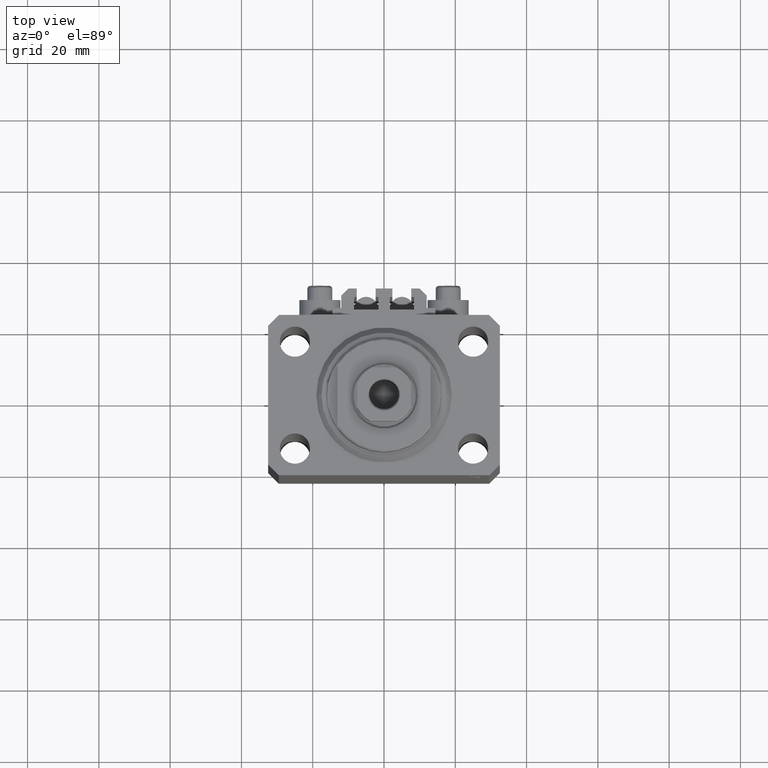
[diagram: clean part render]
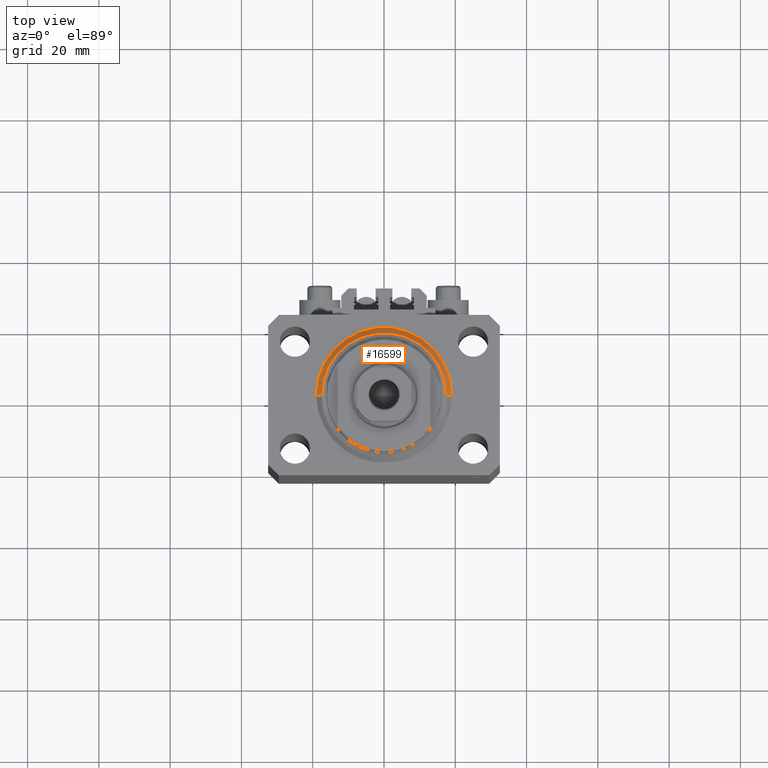
[diagram: same view with one face highlighted and labeled with its STEP entity id]
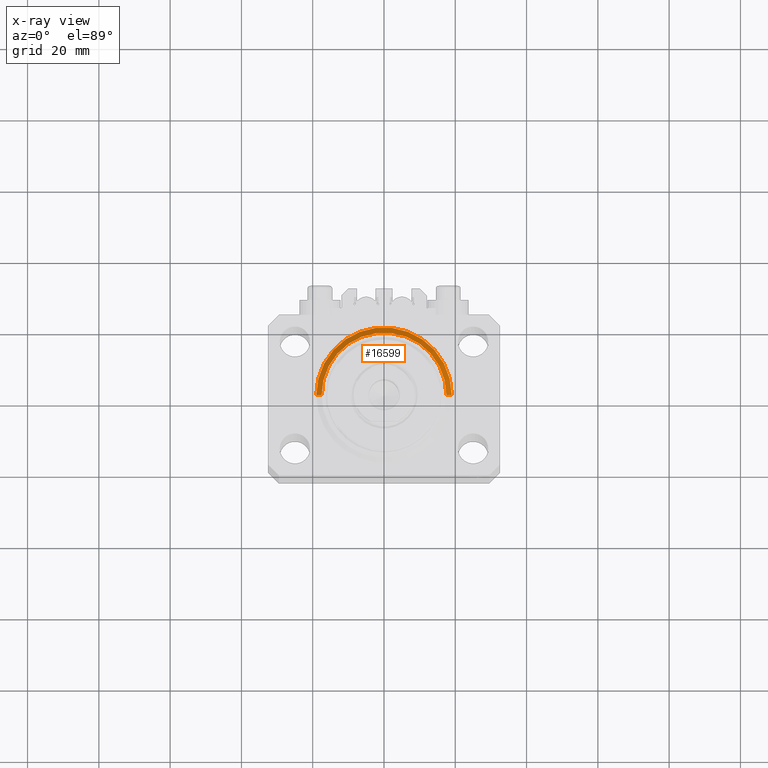
[diagram: x-ray of the same camera — body ghosted, the highlighted face saturated]
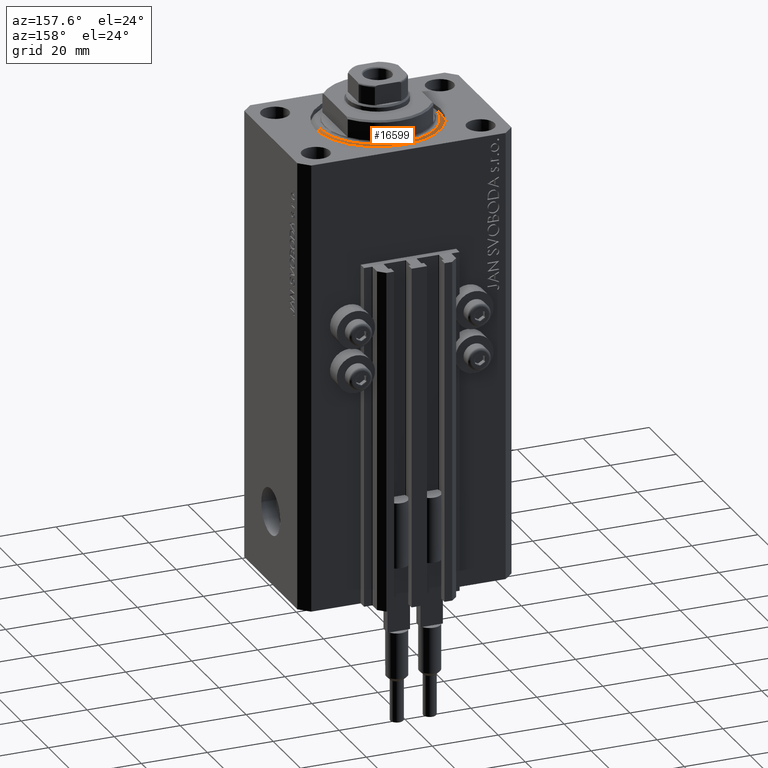
[diagram: same view with one face highlighted and labeled with its STEP entity id]
A machine part, top view. The second image highlights one B-rep face of the part: STEP entity #16599.
The next image is the same camera in x-ray: the body ghosted, the highlighted face saturated — about 0% of this face is hidden behind the body in this view.
A second angle (auxiliary view) of the same face is appended — the face is thin or edge-on in the first view.
In plain terms, the highlighted conical surface has half-angle 45 deg.
Its self-contained STEP definition (entity closure, byte-faithful):
#907 = CARTESIAN_POINT ( 'NONE',  ( 0.000000000000000000, 0.000000000000000000, 1.500000000000004885 ) ) ;
#1281 = AXIS2_PLACEMENT_3D ( 'NONE', #42294, #46432, #8942 ) ;
#1509 = DIRECTION ( 'NONE',  ( -0.7071067811865483499, 8.659560562354943952E-17, 0.7071067811865467956 ) ) ;
#3047 = ORIENTED_EDGE ( 'NONE', *, *, #12336, .F. ) ;
#3214 = FACE_OUTER_BOUND ( 'NONE', #42265, .T. ) ;
#3962 = VECTOR ( 'NONE', #45129, 1000.000000000000000 ) ;
#6084 = CARTESIAN_POINT ( 'NONE',  ( 19.00000000000000000, 2.326828918379970970E-15, 1.500000000000004885 ) ) ;
#6701 = CIRCLE ( 'NONE', #1281, 17.49999999999999289 ) ;
#7655 = EDGE_CURVE ( 'NONE', #30315, #27007, #16115, .T. ) ;
#7818 = CARTESIAN_POINT ( 'NONE',  ( -19.00000000000000000, 0.000000000000000000, 1.500000000000004885 ) ) ;
#8550 = CARTESIAN_POINT ( 'NONE',  ( -19.00000000000000000, 2.326828918379970970E-15, 1.500000000000004885 ) ) ;
#8821 = CIRCLE ( 'NONE', #36038, 19.00000000000000000 ) ;
#8942 = DIRECTION ( 'NONE',  ( 1.000000000000000000, 0.000000000000000000, 0.000000000000000000 ) ) ;
#9669 = CONICAL_SURFACE ( 'NONE', #46250, 19.00000000000000000, 0.7853981633974492782 ) ;
#9884 = CARTESIAN_POINT ( 'NONE',  ( 17.49999999999999289, 0.000000000000000000, 0.000000000000000000 ) ) ;
#12336 = EDGE_CURVE ( 'NONE', #28673, #44255, #34410, .T. ) ;
#16115 = LINE ( 'NONE', #8550, #42831 ) ;
#16599 = ADVANCED_FACE ( 'NONE', ( #3214 ), #9669, .T. ) ;
#18514 = CARTESIAN_POINT ( 'NONE',  ( 0.000000000000000000, 0.000000000000000000, 1.500000000000004885 ) ) ;
#20616 = EDGE_CURVE ( 'NONE', #44255, #27007, #8821, .T. ) ;
#22074 = DIRECTION ( 'NONE',  ( 1.000000000000000000, 0.000000000000000000, 0.000000000000000000 ) ) ;
#27007 = VERTEX_POINT ( 'NONE', #7818 ) ;
#28673 = VERTEX_POINT ( 'NONE', #9884 ) ;
#30315 = VERTEX_POINT ( 'NONE', #41853 ) ;
#31403 = EDGE_CURVE ( 'NONE', #30315, #28673, #6701, .T. ) ;
#34410 = LINE ( 'NONE', #44420, #3962 ) ;
#34733 = ORIENTED_EDGE ( 'NONE', *, *, #20616, .F. ) ;
#36038 = AXIS2_PLACEMENT_3D ( 'NONE', #907, #41059, #22074 ) ;
#36465 = ORIENTED_EDGE ( 'NONE', *, *, #31403, .F. ) ;
#40200 = DIRECTION ( 'NONE',  ( 1.000000000000000000, 0.000000000000000000, 0.000000000000000000 ) ) ;
#40278 = ORIENTED_EDGE ( 'NONE', *, *, #7655, .T. ) ;
#41059 = DIRECTION ( 'NONE',  ( -0.000000000000000000, -0.000000000000000000, 1.000000000000000000 ) ) ;
#41853 = CARTESIAN_POINT ( 'NONE',  ( -17.49999999999999289, 2.234980408443919215E-15, 0.000000000000000000 ) ) ;
#42265 = EDGE_LOOP ( 'NONE', ( #36465, #40278, #34733, #3047 ) ) ;
#42294 = CARTESIAN_POINT ( 'NONE',  ( 0.000000000000000000, 0.000000000000000000, 0.000000000000000000 ) ) ;
#42831 = VECTOR ( 'NONE', #1509, 1000.000000000000000 ) ;
#44255 = VERTEX_POINT ( 'NONE', #6084 ) ;
#44331 = DIRECTION ( 'NONE',  ( -0.000000000000000000, -0.000000000000000000, 1.000000000000000000 ) ) ;
#44420 = CARTESIAN_POINT ( 'NONE',  ( 19.00000000000000000, 0.000000000000000000, 1.500000000000004885 ) ) ;
#45129 = DIRECTION ( 'NONE',  ( 0.7071067811865483499, 0.000000000000000000, 0.7071067811865467956 ) ) ;
#46250 = AXIS2_PLACEMENT_3D ( 'NONE', #18514, #44331, #40200 ) ;
#46432 = DIRECTION ( 'NONE',  ( -0.000000000000000000, -0.000000000000000000, -1.000000000000000000 ) ) ;